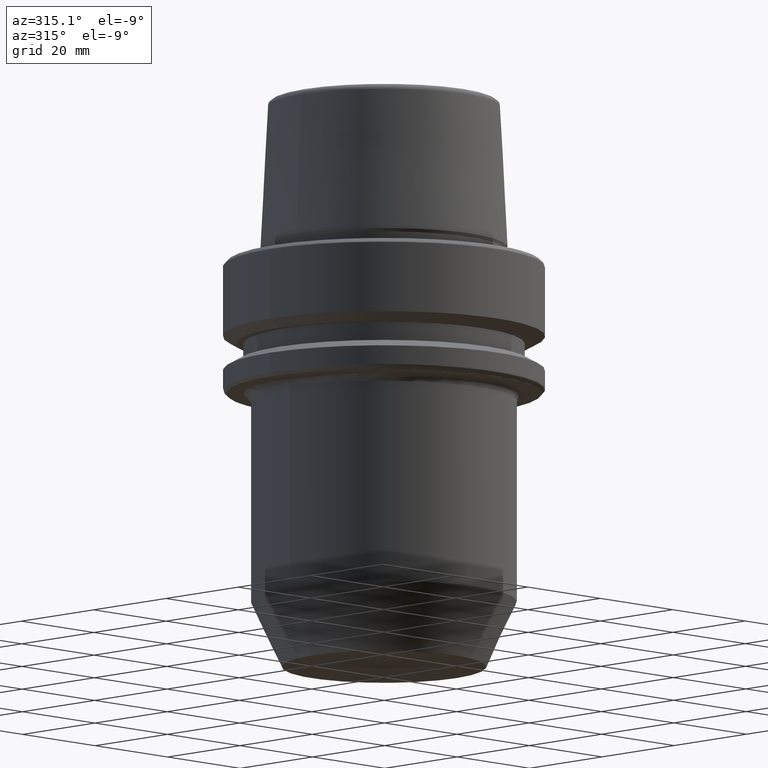
[diagram: clean part render]
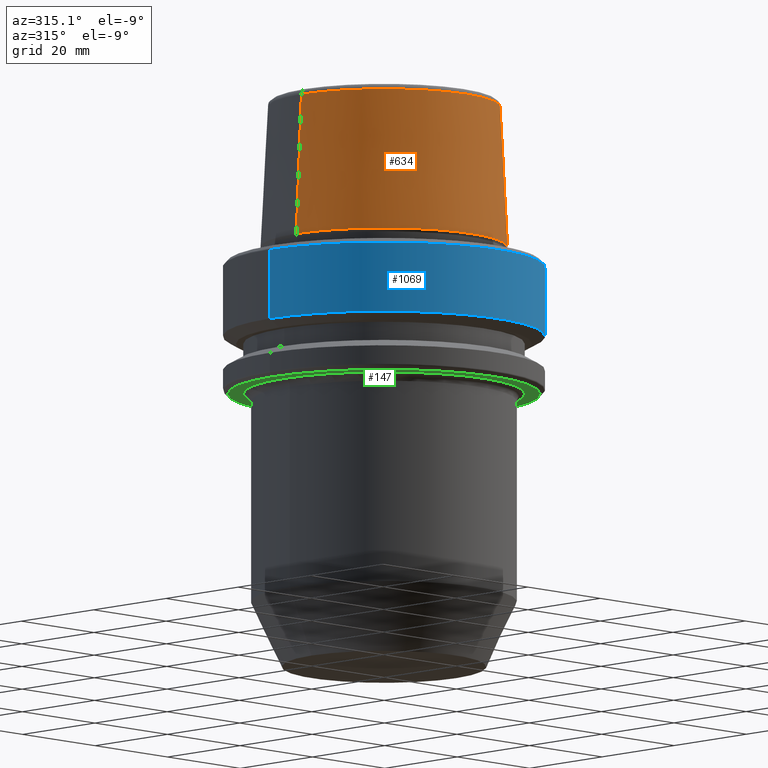
[diagram: same view with three faces highlighted in distinct colors, each labeled with its STEP entity id]
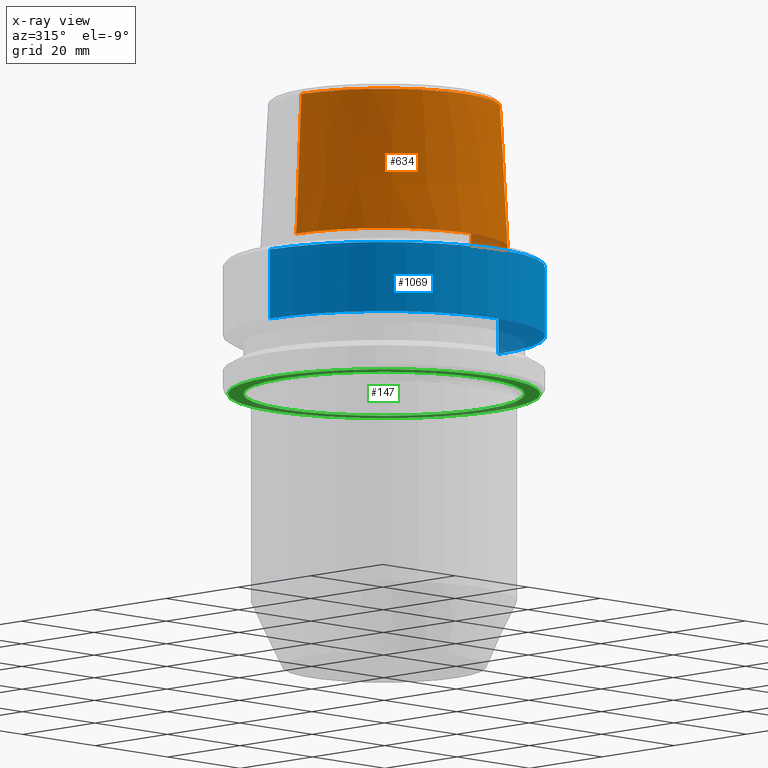
[diagram: x-ray of the same camera — body ghosted, the three highlighted faces saturated]
A machine part, auxiliary view with three faces highlighted in distinct colors.
The next image is the same camera in x-ray (body ghosted, the three faces saturated) — at least one of them is partly hidden behind the body in this view.
Their STEP definitions:

[orange] entity #634 — the highlighted conical surface has half-angle 2.868 deg.
#6 = EDGE_CURVE ( 'NONE', #439, #733, #497, .T. ) ;
#9 = VECTOR ( 'NONE', #338, 1000.000000000000200 ) ;
#16 = AXIS2_PLACEMENT_3D ( 'NONE', #926, #262, #503 ) ;
#24 = CARTESIAN_POINT ( 'NONE',  ( 24.17032625081241900, 0.0000000000000000000, 3.000000000000002700 ) ) ;
#168 = CARTESIAN_POINT ( 'NONE',  ( -24.17032625081241900, 2.960011267740467600E-015, 3.000000000000002700 ) ) ;
#223 = DIRECTION ( 'NONE',  ( -0.0000000000000000000, -0.0000000000000000000, 1.000000000000000000 ) ) ;
#243 = AXIS2_PLACEMENT_3D ( 'NONE', #625, #223, #942 ) ;
#262 = DIRECTION ( 'NONE',  ( -0.0000000000000000000, -0.0000000000000000000, 1.000000000000000000 ) ) ;
#282 = EDGE_LOOP ( 'NONE', ( #771, #750, #690, #397 ) ) ;
#335 = CARTESIAN_POINT ( 'NONE',  ( -24.17032625081241900, 0.0000000000000000000, 3.000000000000002700 ) ) ;
#338 = DIRECTION ( 'NONE',  ( 0.05003611051310812000, 6.127656258166108900E-018, -0.9987474093306675200 ) ) ;
#349 = VERTEX_POINT ( 'NONE', #168 ) ;
#378 = CIRCLE ( 'NONE', #16, 24.17032625081241900 ) ;
#397 = ORIENTED_EDGE ( 'NONE', *, *, #586, .T. ) ;
#439 = VERTEX_POINT ( 'NONE', #543 ) ;
#466 = EDGE_CURVE ( 'NONE', #1063, #349, #1162, .T. ) ;
#490 = EDGE_CURVE ( 'NONE', #1063, #439, #1088, .T. ) ;
#497 = LINE ( 'NONE', #550, #9 ) ;
#503 = DIRECTION ( 'NONE',  ( 1.000000000000000000, 0.0000000000000000000, 0.0000000000000000000 ) ) ;
#543 = CARTESIAN_POINT ( 'NONE',  ( 22.77957961851797100, 2.874852597157249900E-015, 30.76004333261571900 ) ) ;
#550 = CARTESIAN_POINT ( 'NONE',  ( 24.17032625081241900, 2.960011267740467600E-015, 3.000000000000002700 ) ) ;
#568 = VECTOR ( 'NONE', #1196, 1000.000000000000200 ) ;
#585 = DIRECTION ( 'NONE',  ( -1.000000000000000000, 0.0000000000000000000, 0.0000000000000000000 ) ) ;
#586 = EDGE_CURVE ( 'NONE', #349, #733, #378, .T. ) ;
#625 = CARTESIAN_POINT ( 'NONE',  ( 0.0000000000000000000, 0.0000000000000000000, 30.76004333261571900 ) ) ;
#634 = ADVANCED_FACE ( 'NONE', ( #743 ), #934, .T. ) ;
#690 = ORIENTED_EDGE ( 'NONE', *, *, #466, .T. ) ;
#697 = AXIS2_PLACEMENT_3D ( 'NONE', #882, #1002, #585 ) ;
#733 = VERTEX_POINT ( 'NONE', #24 ) ;
#743 = FACE_OUTER_BOUND ( 'NONE', #282, .T. ) ;
#750 = ORIENTED_EDGE ( 'NONE', *, *, #490, .F. ) ;
#771 = ORIENTED_EDGE ( 'NONE', *, *, #6, .F. ) ;
#882 = CARTESIAN_POINT ( 'NONE',  ( 0.0000000000000000000, 0.0000000000000000000, 3.000000000000002700 ) ) ;
#926 = CARTESIAN_POINT ( 'NONE',  ( 0.0000000000000000000, 0.0000000000000000000, 3.000000000000002700 ) ) ;
#934 = CONICAL_SURFACE ( 'NONE', #697, 24.17032625081241900, 0.05005701257456005000 ) ;
#942 = DIRECTION ( 'NONE',  ( 1.000000000000000000, 0.0000000000000000000, 0.0000000000000000000 ) ) ;
#1002 = DIRECTION ( 'NONE',  ( 0.0000000000000000000, 0.0000000000000000000, -1.000000000000000000 ) ) ;
#1063 = VERTEX_POINT ( 'NONE', #1064 ) ;
#1064 = CARTESIAN_POINT ( 'NONE',  ( -22.77957961851797100, 0.0000000000000000000, 30.76004333261571900 ) ) ;
#1088 = CIRCLE ( 'NONE', #243, 22.77957961851797100 ) ;
#1162 = LINE ( 'NONE', #335, #568 ) ;
#1196 = DIRECTION ( 'NONE',  ( -0.05003611051310812000, 0.0000000000000000000, -0.9987474093306675200 ) ) ;

[blue] entity #1069 — the highlighted cylindrical surface (partial cylindrical patch) has radius 31.5 mm, axis along (-0, -0, 1).
#32 = DIRECTION ( 'NONE',  ( -0.0000000000000000000, -0.0000000000000000000, 1.000000000000000000 ) ) ;
#110 = CIRCLE ( 'NONE', #971, 31.50000000000000700 ) ;
#139 = FACE_OUTER_BOUND ( 'NONE', #371, .T. ) ;
#140 = LINE ( 'NONE', #1257, #213 ) ;
#142 = DIRECTION ( 'NONE',  ( -0.0000000000000000000, -0.0000000000000000000, 1.000000000000000000 ) ) ;
#202 = EDGE_CURVE ( 'NONE', #383, #936, #140, .T. ) ;
#213 = VECTOR ( 'NONE', #526, 1000.000000000000000 ) ;
#298 = CYLINDRICAL_SURFACE ( 'NONE', #508, 31.50000000000000000 ) ;
#329 = CARTESIAN_POINT ( 'NONE',  ( -31.50000000000000700, 3.857637417314163500E-015, -0.9656854249492363700 ) ) ;
#330 = ORIENTED_EDGE ( 'NONE', *, *, #937, .F. ) ;
#333 = DIRECTION ( 'NONE',  ( 1.000000000000000000, 0.0000000000000000000, 0.0000000000000000000 ) ) ;
#341 = EDGE_CURVE ( 'NONE', #707, #383, #694, .T. ) ;
#371 = EDGE_LOOP ( 'NONE', ( #1021, #1174, #653, #330 ) ) ;
#383 = VERTEX_POINT ( 'NONE', #830 ) ;
#402 = EDGE_CURVE ( 'NONE', #707, #764, #949, .T. ) ;
#421 = DIRECTION ( 'NONE',  ( -0.0000000000000000000, -0.0000000000000000000, 1.000000000000000000 ) ) ;
#481 = VECTOR ( 'NONE', #32, 1000.000000000000000 ) ;
#508 = AXIS2_PLACEMENT_3D ( 'NONE', #852, #794, #1094 ) ;
#526 = DIRECTION ( 'NONE',  ( -0.0000000000000000000, -0.0000000000000000000, 1.000000000000000000 ) ) ;
#653 = ORIENTED_EDGE ( 'NONE', *, *, #202, .T. ) ;
#694 = CIRCLE ( 'NONE', #1161, 31.50000000000000000 ) ;
#707 = VERTEX_POINT ( 'NONE', #1112 ) ;
#764 = VERTEX_POINT ( 'NONE', #329 ) ;
#794 = DIRECTION ( 'NONE',  ( -0.0000000000000000000, -0.0000000000000000000, 1.000000000000000000 ) ) ;
#807 = DIRECTION ( 'NONE',  ( 1.000000000000000000, 0.0000000000000000000, 0.0000000000000000000 ) ) ;
#830 = CARTESIAN_POINT ( 'NONE',  ( 31.50000000000000000, 0.0000000000000000000, -14.62250092524070100 ) ) ;
#852 = CARTESIAN_POINT ( 'NONE',  ( 0.0000000000000000000, 0.0000000000000000000, 78.96908074195309300 ) ) ;
#854 = CARTESIAN_POINT ( 'NONE',  ( 31.50000000000000700, 0.0000000000000000000, -0.9656854249492363700 ) ) ;
#921 = CARTESIAN_POINT ( 'NONE',  ( -31.50000000000000000, 3.857637417314162700E-015, 78.96908074195309300 ) ) ;
#936 = VERTEX_POINT ( 'NONE', #854 ) ;
#937 = EDGE_CURVE ( 'NONE', #764, #936, #110, .T. ) ;
#949 = LINE ( 'NONE', #921, #481 ) ;
#971 = AXIS2_PLACEMENT_3D ( 'NONE', #1066, #142, #807 ) ;
#986 = CARTESIAN_POINT ( 'NONE',  ( 0.0000000000000000000, 0.0000000000000000000, -14.62250092524070100 ) ) ;
#1021 = ORIENTED_EDGE ( 'NONE', *, *, #402, .F. ) ;
#1066 = CARTESIAN_POINT ( 'NONE',  ( 0.0000000000000000000, 0.0000000000000000000, -0.9656854249492363700 ) ) ;
#1069 = ADVANCED_FACE ( 'NONE', ( #139 ), #298, .T. ) ;
#1094 = DIRECTION ( 'NONE',  ( 1.000000000000000000, 0.0000000000000000000, 0.0000000000000000000 ) ) ;
#1112 = CARTESIAN_POINT ( 'NONE',  ( -31.50000000000000000, 3.857637417314162700E-015, -14.62250092524070100 ) ) ;
#1161 = AXIS2_PLACEMENT_3D ( 'NONE', #986, #421, #333 ) ;
#1174 = ORIENTED_EDGE ( 'NONE', *, *, #341, .T. ) ;
#1257 = CARTESIAN_POINT ( 'NONE',  ( 31.50000000000000000, 0.0000000000000000000, 78.96908074195309300 ) ) ;

[green] entity #147 — the highlighted planar face has unit normal (0, -0, 1).
#92 = ORIENTED_EDGE ( 'NONE', *, *, #705, .T. ) ;
#147 = ADVANCED_FACE ( 'NONE', ( #600, #857 ), #423, .F. ) ;
#190 = AXIS2_PLACEMENT_3D ( 'NONE', #524, #1099, #432 ) ;
#210 = DIRECTION ( 'NONE',  ( -0.0000000000000000000, -0.0000000000000000000, 1.000000000000000000 ) ) ;
#229 = DIRECTION ( 'NONE',  ( 1.000000000000000000, 0.0000000000000000000, 0.0000000000000000000 ) ) ;
#342 = CARTESIAN_POINT ( 'NONE',  ( 0.0000000000000000000, 0.0000000000000000000, -26.00000000000001100 ) ) ;
#347 = VERTEX_POINT ( 'NONE', #495 ) ;
#396 = CIRCLE ( 'NONE', #606, 30.53431457505076800 ) ;
#406 = DIRECTION ( 'NONE',  ( 1.000000000000000000, 0.0000000000000000000, 0.0000000000000000000 ) ) ;
#407 = CIRCLE ( 'NONE', #678, 27.50000000000000000 ) ;
#423 = PLANE ( 'NONE',  #901 ) ;
#432 = DIRECTION ( 'NONE',  ( 1.000000000000000000, 0.0000000000000000000, 0.0000000000000000000 ) ) ;
#495 = CARTESIAN_POINT ( 'NONE',  ( -27.50000000000000000, 3.367778697655221300E-015, -26.00000000000001100 ) ) ;
#524 = CARTESIAN_POINT ( 'NONE',  ( 0.0000000000000000000, 0.0000000000000000000, -26.00000000000001100 ) ) ;
#536 = CARTESIAN_POINT ( 'NONE',  ( 30.53431457505076800, 0.0000000000000000000, -26.00000000000001100 ) ) ;
#537 = DIRECTION ( 'NONE',  ( 1.000000000000000000, 0.0000000000000000000, 0.0000000000000000000 ) ) ;
#539 = ORIENTED_EDGE ( 'NONE', *, *, #595, .F. ) ;
#555 = VERTEX_POINT ( 'NONE', #839 ) ;
#560 = DIRECTION ( 'NONE',  ( 0.0000000000000000000, -0.0000000000000000000, 1.000000000000000000 ) ) ;
#587 = VERTEX_POINT ( 'NONE', #536 ) ;
#595 = EDGE_CURVE ( 'NONE', #587, #868, #396, .T. ) ;
#600 = FACE_BOUND ( 'NONE', #920, .T. ) ;
#606 = AXIS2_PLACEMENT_3D ( 'NONE', #759, #877, #537 ) ;
#666 = EDGE_LOOP ( 'NONE', ( #539, #711 ) ) ;
#678 = AXIS2_PLACEMENT_3D ( 'NONE', #342, #908, #972 ) ;
#705 = EDGE_CURVE ( 'NONE', #347, #555, #714, .T. ) ;
#711 = ORIENTED_EDGE ( 'NONE', *, *, #772, .F. ) ;
#714 = CIRCLE ( 'NONE', #1006, 27.50000000000000000 ) ;
#724 = CARTESIAN_POINT ( 'NONE',  ( -30.53431457505076800, 3.756694181974139400E-015, -26.00000000000001100 ) ) ;
#759 = CARTESIAN_POINT ( 'NONE',  ( 0.0000000000000000000, 0.0000000000000000000, -26.00000000000001100 ) ) ;
#772 = EDGE_CURVE ( 'NONE', #868, #587, #1167, .T. ) ;
#839 = CARTESIAN_POINT ( 'NONE',  ( 27.50000000000000000, 0.0000000000000000000, -26.00000000000001100 ) ) ;
#857 = FACE_OUTER_BOUND ( 'NONE', #666, .T. ) ;
#868 = VERTEX_POINT ( 'NONE', #724 ) ;
#873 = ORIENTED_EDGE ( 'NONE', *, *, #917, .T. ) ;
#877 = DIRECTION ( 'NONE',  ( -0.0000000000000000000, -0.0000000000000000000, 1.000000000000000000 ) ) ;
#896 = CARTESIAN_POINT ( 'NONE',  ( 0.0000000000000000000, 0.0000000000000000000, -26.00000000000001100 ) ) ;
#901 = AXIS2_PLACEMENT_3D ( 'NONE', #1237, #560, #406 ) ;
#908 = DIRECTION ( 'NONE',  ( -0.0000000000000000000, -0.0000000000000000000, 1.000000000000000000 ) ) ;
#917 = EDGE_CURVE ( 'NONE', #555, #347, #407, .T. ) ;
#920 = EDGE_LOOP ( 'NONE', ( #873, #92 ) ) ;
#972 = DIRECTION ( 'NONE',  ( 1.000000000000000000, 0.0000000000000000000, 0.0000000000000000000 ) ) ;
#1006 = AXIS2_PLACEMENT_3D ( 'NONE', #896, #210, #229 ) ;
#1099 = DIRECTION ( 'NONE',  ( -0.0000000000000000000, -0.0000000000000000000, 1.000000000000000000 ) ) ;
#1167 = CIRCLE ( 'NONE', #190, 30.53431457505076800 ) ;
#1237 = CARTESIAN_POINT ( 'NONE',  ( 0.0000000000000000000, 30.53431457505076800, -26.00000000000001100 ) ) ;